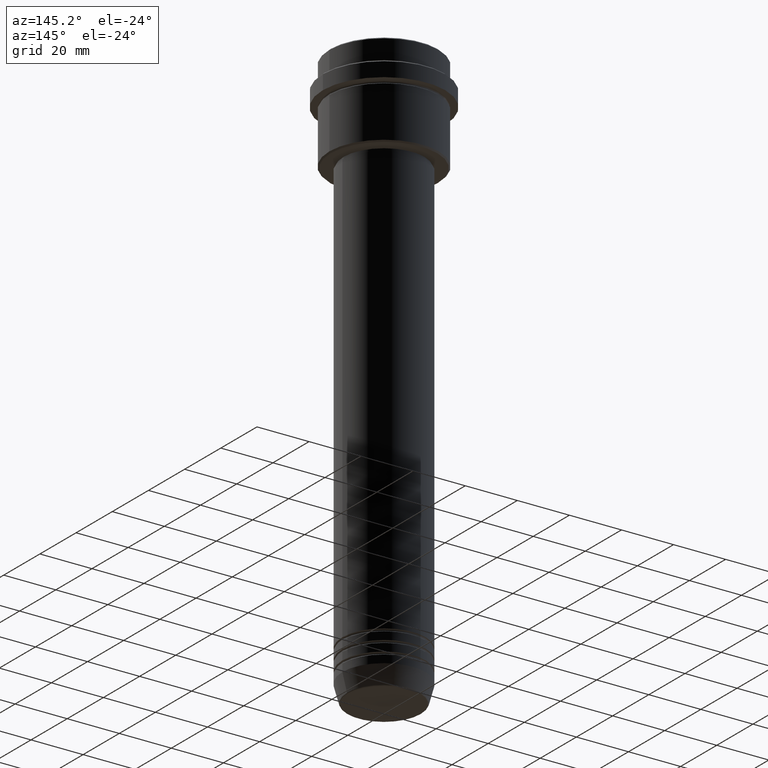
[diagram: clean part render]
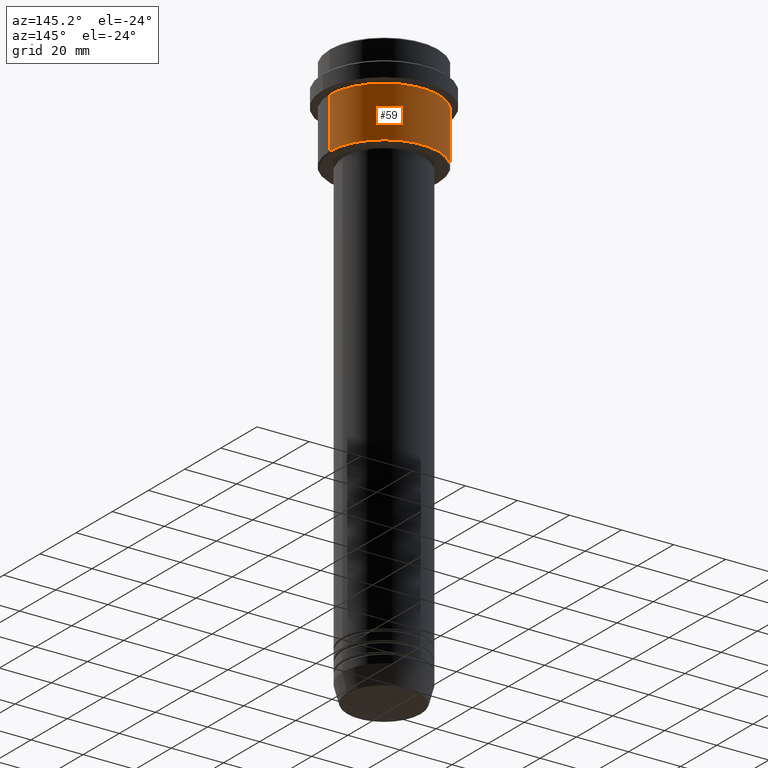
[diagram: same view with one face highlighted and labeled with its STEP entity id]
A machine part, auxiliary view. The second image highlights one B-rep face of the part: STEP entity #59.
In plain terms, the highlighted cylindrical surface (partial cylindrical patch) has radius 21 mm, axis along (-0, -0, 1).
Its self-contained STEP definition (entity closure, byte-faithful):
#40 = VERTEX_POINT ( 'NONE', #781 ) ;
#41 = CARTESIAN_POINT ( 'NONE',  ( 0.000000000000000000, 0.000000000000000000, -16.00000000000000355 ) ) ;
#59 = ADVANCED_FACE ( 'NONE', ( #1356 ), #241, .T. ) ;
#78 = EDGE_CURVE ( 'NONE', #690, #1302, #1347, .T. ) ;
#97 = VECTOR ( 'NONE', #190, 1000.000000000000000 ) ;
#98 = CARTESIAN_POINT ( 'NONE',  ( 21.00000000000000000, 0.000000000000000000, -16.00000000000000355 ) ) ;
#190 = DIRECTION ( 'NONE',  ( -0.000000000000000000, -0.000000000000000000, 1.000000000000000000 ) ) ;
#241 = CYLINDRICAL_SURFACE ( 'NONE', #760, 21.00000000000000000 ) ;
#274 = ORIENTED_EDGE ( 'NONE', *, *, #1288, .T. ) ;
#320 = CIRCLE ( 'NONE', #1306, 21.00000000000000000 ) ;
#353 = DIRECTION ( 'NONE',  ( -0.000000000000000000, -0.000000000000000000, 1.000000000000000000 ) ) ;
#363 = CARTESIAN_POINT ( 'NONE',  ( 0.000000000000000000, 0.000000000000000000, 0.000000000000000000 ) ) ;
#440 = ORIENTED_EDGE ( 'NONE', *, *, #532, .T. ) ;
#466 = DIRECTION ( 'NONE',  ( 1.000000000000000000, 0.000000000000000000, 0.000000000000000000 ) ) ;
#471 = CARTESIAN_POINT ( 'NONE',  ( 0.000000000000000000, 0.000000000000000000, -35.49999999999997868 ) ) ;
#532 = EDGE_CURVE ( 'NONE', #690, #40, #320, .T. ) ;
#601 = EDGE_CURVE ( 'NONE', #1302, #895, #1172, .T. ) ;
#609 = EDGE_LOOP ( 'NONE', ( #440, #274, #929, #1263 ) ) ;
#646 = LINE ( 'NONE', #1290, #97 ) ;
#682 = DIRECTION ( 'NONE',  ( -0.000000000000000000, -0.000000000000000000, 1.000000000000000000 ) ) ;
#690 = VERTEX_POINT ( 'NONE', #935 ) ;
#760 = AXIS2_PLACEMENT_3D ( 'NONE', #363, #797, #466 ) ;
#781 = CARTESIAN_POINT ( 'NONE',  ( -21.00000000000000000, 2.571758278209441661E-15, -35.49999999999997868 ) ) ;
#791 = DIRECTION ( 'NONE',  ( -0.000000000000000000, -0.000000000000000000, 1.000000000000000000 ) ) ;
#797 = DIRECTION ( 'NONE',  ( -0.000000000000000000, -0.000000000000000000, 1.000000000000000000 ) ) ;
#895 = VERTEX_POINT ( 'NONE', #1403 ) ;
#915 = DIRECTION ( 'NONE',  ( -1.000000000000000000, 0.000000000000000000, 0.000000000000000000 ) ) ;
#929 = ORIENTED_EDGE ( 'NONE', *, *, #601, .F. ) ;
#935 = CARTESIAN_POINT ( 'NONE',  ( 21.00000000000000000, 0.000000000000000000, -35.49999999999997868 ) ) ;
#1029 = VECTOR ( 'NONE', #791, 1000.000000000000000 ) ;
#1121 = CARTESIAN_POINT ( 'NONE',  ( 21.00000000000000000, 0.000000000000000000, 0.000000000000000000 ) ) ;
#1172 = CIRCLE ( 'NONE', #1265, 21.00000000000000000 ) ;
#1225 = DIRECTION ( 'NONE',  ( 1.000000000000000000, 0.000000000000000000, 0.000000000000000000 ) ) ;
#1263 = ORIENTED_EDGE ( 'NONE', *, *, #78, .F. ) ;
#1265 = AXIS2_PLACEMENT_3D ( 'NONE', #41, #353, #1225 ) ;
#1288 = EDGE_CURVE ( 'NONE', #40, #895, #646, .T. ) ;
#1290 = CARTESIAN_POINT ( 'NONE',  ( -21.00000000000000000, 2.571758278209441661E-15, 0.000000000000000000 ) ) ;
#1302 = VERTEX_POINT ( 'NONE', #98 ) ;
#1306 = AXIS2_PLACEMENT_3D ( 'NONE', #471, #682, #915 ) ;
#1347 = LINE ( 'NONE', #1121, #1029 ) ;
#1356 = FACE_OUTER_BOUND ( 'NONE', #609, .T. ) ;
#1403 = CARTESIAN_POINT ( 'NONE',  ( -21.00000000000000000, 2.571758278209441661E-15, -16.00000000000000355 ) ) ;